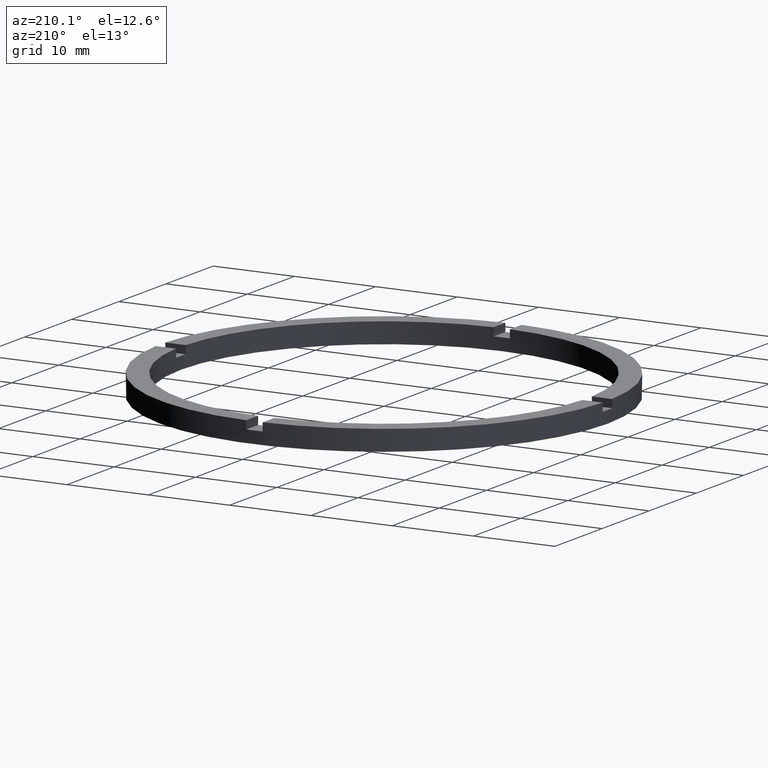
[diagram: clean part render]
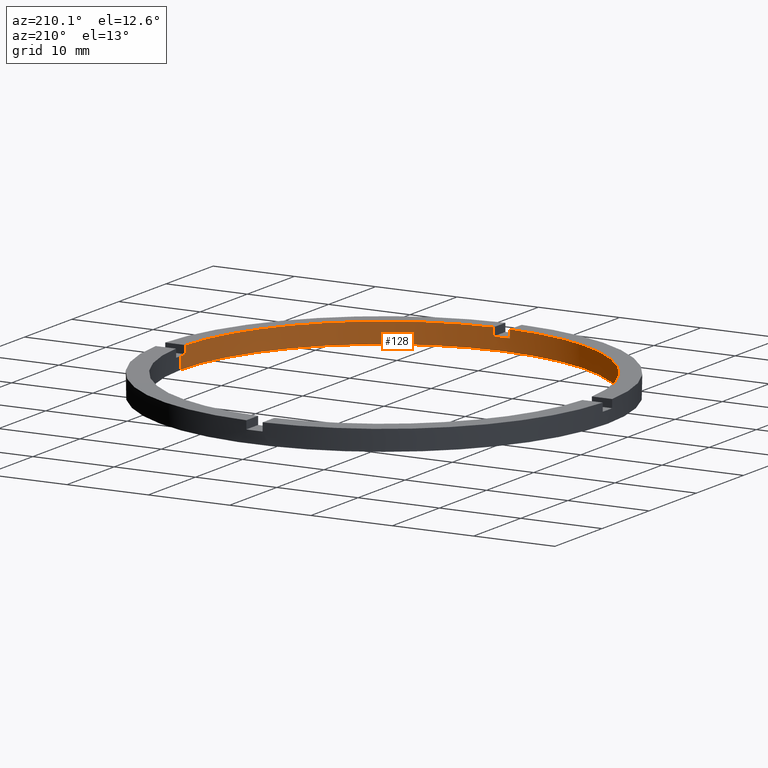
[diagram: same view with one face highlighted and labeled with its STEP entity id]
A machine part, auxiliary view. The second image highlights one B-rep face of the part: STEP entity #128.
In plain terms, the highlighted cylindrical surface (partial cylindrical patch) has radius 25 mm, axis along (-0, -0, -1).
Its self-contained STEP definition (entity closure, byte-faithful):
#6 = EDGE_CURVE ( 'NONE', #117, #188, #278, .T. ) ;
#9 = DIRECTION ( 'NONE',  ( 1.000000000000000000, 0.000000000000000000, 0.000000000000000000 ) ) ;
#13 = CARTESIAN_POINT ( 'NONE',  ( 0.000000000000000000, 0.000000000000000000, 1.500000000000000000 ) ) ;
#21 = CARTESIAN_POINT ( 'NONE',  ( 0.000000000000000000, 0.000000000000000000, 0.000000000000000000 ) ) ;
#26 = LINE ( 'NONE', #185, #553 ) ;
#30 = CIRCLE ( 'NONE', #533, 25.00000000000000000 ) ;
#33 = CARTESIAN_POINT ( 'NONE',  ( -1.000000000000160316, -24.97999199359358968, 1.500000000000000000 ) ) ;
#36 = AXIS2_PLACEMENT_3D ( 'NONE', #65, #618, #9 ) ;
#43 = CARTESIAN_POINT ( 'NONE',  ( 0.000000000000000000, 0.000000000000000000, 1.500000000000000000 ) ) ;
#44 = AXIS2_PLACEMENT_3D ( 'NONE', #21, #736, #739 ) ;
#65 = CARTESIAN_POINT ( 'NONE',  ( 0.000000000000000000, 0.000000000000000000, 2.500000000000000000 ) ) ;
#77 = ORIENTED_EDGE ( 'NONE', *, *, #657, .T. ) ;
#91 = VERTEX_POINT ( 'NONE', #432 ) ;
#92 = ORIENTED_EDGE ( 'NONE', *, *, #307, .T. ) ;
#96 = CARTESIAN_POINT ( 'NONE',  ( -25.00000000000000000, 0.000000000000000000, 1.500000000000000000 ) ) ;
#112 = DIRECTION ( 'NONE',  ( -0.000000000000000000, -0.000000000000000000, -1.000000000000000000 ) ) ;
#113 = ORIENTED_EDGE ( 'NONE', *, *, #509, .F. ) ;
#117 = VERTEX_POINT ( 'NONE', #542 ) ;
#119 = CARTESIAN_POINT ( 'NONE',  ( -1.000000000000160316, -24.97999199359358968, 2.500000000000000000 ) ) ;
#128 = ADVANCED_FACE ( 'NONE', ( #522 ), #257, .F. ) ;
#134 = ORIENTED_EDGE ( 'NONE', *, *, #177, .F. ) ;
#136 = ORIENTED_EDGE ( 'NONE', *, *, #625, .F. ) ;
#139 = AXIS2_PLACEMENT_3D ( 'NONE', #43, #222, #347 ) ;
#144 = VERTEX_POINT ( 'NONE', #680 ) ;
#155 = DIRECTION ( 'NONE',  ( 0.000000000000000000, 0.000000000000000000, 1.000000000000000000 ) ) ;
#160 = CARTESIAN_POINT ( 'NONE',  ( 25.00000000000000000, 3.061616997868383043E-15, 0.000000000000000000 ) ) ;
#177 = EDGE_CURVE ( 'NONE', #91, #655, #277, .T. ) ;
#185 = CARTESIAN_POINT ( 'NONE',  ( 25.00000000000000000, 3.061616997868383043E-15, 2.500000000000000000 ) ) ;
#188 = VERTEX_POINT ( 'NONE', #254 ) ;
#202 = EDGE_CURVE ( 'NONE', #653, #91, #505, .T. ) ;
#213 = DIRECTION ( 'NONE',  ( -0.000000000000000000, -0.000000000000000000, -1.000000000000000000 ) ) ;
#222 = DIRECTION ( 'NONE',  ( 0.000000000000000000, 0.000000000000000000, 1.000000000000000000 ) ) ;
#228 = VECTOR ( 'NONE', #112, 1000.000000000000000 ) ;
#235 = LINE ( 'NONE', #280, #502 ) ;
#237 = LINE ( 'NONE', #746, #228 ) ;
#245 = DIRECTION ( 'NONE',  ( -0.000000000000000000, -0.000000000000000000, -1.000000000000000000 ) ) ;
#251 = VECTOR ( 'NONE', #569, 1000.000000000000000 ) ;
#254 = CARTESIAN_POINT ( 'NONE',  ( 25.00000000000000000, 3.061616997868383043E-15, 1.500000000000000000 ) ) ;
#257 = CYLINDRICAL_SURFACE ( 'NONE', #574, 25.00000000000000000 ) ;
#261 = CARTESIAN_POINT ( 'NONE',  ( 0.000000000000000000, 0.000000000000000000, 2.500000000000000000 ) ) ;
#277 = CIRCLE ( 'NONE', #44, 25.00000000000000000 ) ;
#278 = CIRCLE ( 'NONE', #436, 25.00000000000000000 ) ;
#280 = CARTESIAN_POINT ( 'NONE',  ( -1.000000000000160316, -24.97999199359358968, 2.500000000000000000 ) ) ;
#294 = CIRCLE ( 'NONE', #485, 25.00000000000000000 ) ;
#300 = DIRECTION ( 'NONE',  ( 0.000000000000000000, 0.000000000000000000, 1.000000000000000000 ) ) ;
#301 = CIRCLE ( 'NONE', #36, 25.00000000000000000 ) ;
#305 = VECTOR ( 'NONE', #213, 1000.000000000000000 ) ;
#307 = EDGE_CURVE ( 'NONE', #611, #710, #294, .T. ) ;
#315 = DIRECTION ( 'NONE',  ( -0.000000000000000000, -0.000000000000000000, -1.000000000000000000 ) ) ;
#331 = CARTESIAN_POINT ( 'NONE',  ( 0.000000000000000000, 0.000000000000000000, 2.500000000000000000 ) ) ;
#347 = DIRECTION ( 'NONE',  ( 1.000000000000000000, 0.000000000000000000, 0.000000000000000000 ) ) ;
#349 = ORIENTED_EDGE ( 'NONE', *, *, #417, .T. ) ;
#354 = VERTEX_POINT ( 'NONE', #415 ) ;
#358 = ORIENTED_EDGE ( 'NONE', *, *, #567, .F. ) ;
#381 = ORIENTED_EDGE ( 'NONE', *, *, #410, .T. ) ;
#402 = ORIENTED_EDGE ( 'NONE', *, *, #469, .T. ) ;
#409 = CARTESIAN_POINT ( 'NONE',  ( -24.97999199359359679, -1.000000000000026423, 1.500000000000000000 ) ) ;
#410 = EDGE_CURVE ( 'NONE', #188, #655, #26, .T. ) ;
#411 = DIRECTION ( 'NONE',  ( 1.000000000000000000, 0.000000000000000000, 0.000000000000000000 ) ) ;
#415 = CARTESIAN_POINT ( 'NONE',  ( 0.9999999999998397948, -24.97999199359360034, 2.500000000000000000 ) ) ;
#417 = EDGE_CURVE ( 'NONE', #606, #711, #30, .T. ) ;
#420 = CARTESIAN_POINT ( 'NONE',  ( -25.00000000000000000, 0.000000000000000000, 2.500000000000000000 ) ) ;
#432 = CARTESIAN_POINT ( 'NONE',  ( -25.00000000000000000, 0.000000000000000000, 0.000000000000000000 ) ) ;
#436 = AXIS2_PLACEMENT_3D ( 'NONE', #512, #300, #757 ) ;
#469 = EDGE_CURVE ( 'NONE', #354, #144, #301, .T. ) ;
#485 = AXIS2_PLACEMENT_3D ( 'NONE', #13, #529, #589 ) ;
#493 = CARTESIAN_POINT ( 'NONE',  ( 24.97999199359358968, -1.000000000000157208, 2.500000000000000000 ) ) ;
#494 = LINE ( 'NONE', #493, #251 ) ;
#500 = CARTESIAN_POINT ( 'NONE',  ( -24.97999199359359679, -1.000000000000026423, 2.500000000000000000 ) ) ;
#502 = VECTOR ( 'NONE', #155, 1000.000000000000000 ) ;
#504 = DIRECTION ( 'NONE',  ( 0.000000000000000000, 0.000000000000000000, 1.000000000000000000 ) ) ;
#505 = LINE ( 'NONE', #420, #769 ) ;
#509 = EDGE_CURVE ( 'NONE', #606, #615, #557, .T. ) ;
#512 = CARTESIAN_POINT ( 'NONE',  ( 0.000000000000000000, 0.000000000000000000, 1.500000000000000000 ) ) ;
#522 = FACE_OUTER_BOUND ( 'NONE', #638, .T. ) ;
#529 = DIRECTION ( 'NONE',  ( -0.000000000000000000, 0.000000000000000000, 1.000000000000000000 ) ) ;
#533 = AXIS2_PLACEMENT_3D ( 'NONE', #331, #504, #411 ) ;
#542 = CARTESIAN_POINT ( 'NONE',  ( 24.97999199359358968, -1.000000000000157208, 1.500000000000000000 ) ) ;
#553 = VECTOR ( 'NONE', #315, 1000.000000000000000 ) ;
#557 = LINE ( 'NONE', #500, #305 ) ;
#567 = EDGE_CURVE ( 'NONE', #117, #144, #494, .T. ) ;
#569 = DIRECTION ( 'NONE',  ( 0.000000000000000000, 0.000000000000000000, 1.000000000000000000 ) ) ;
#574 = AXIS2_PLACEMENT_3D ( 'NONE', #261, #245, #597 ) ;
#589 = DIRECTION ( 'NONE',  ( 1.000000000000000000, 0.000000000000000000, 0.000000000000000000 ) ) ;
#597 = DIRECTION ( 'NONE',  ( -1.000000000000000000, 0.000000000000000000, 0.000000000000000000 ) ) ;
#606 = VERTEX_POINT ( 'NONE', #745 ) ;
#611 = VERTEX_POINT ( 'NONE', #33 ) ;
#615 = VERTEX_POINT ( 'NONE', #409 ) ;
#618 = DIRECTION ( 'NONE',  ( 0.000000000000000000, 0.000000000000000000, 1.000000000000000000 ) ) ;
#625 = EDGE_CURVE ( 'NONE', #611, #711, #235, .T. ) ;
#631 = ORIENTED_EDGE ( 'NONE', *, *, #727, .F. ) ;
#638 = EDGE_LOOP ( 'NONE', ( #666, #381, #134, #682, #77, #113, #349, #136, #92, #631, #402, #358 ) ) ;
#653 = VERTEX_POINT ( 'NONE', #96 ) ;
#655 = VERTEX_POINT ( 'NONE', #160 ) ;
#657 = EDGE_CURVE ( 'NONE', #653, #615, #763, .T. ) ;
#666 = ORIENTED_EDGE ( 'NONE', *, *, #6, .T. ) ;
#672 = CARTESIAN_POINT ( 'NONE',  ( 0.9999999999998397948, -24.97999199359360034, 1.500000000000000000 ) ) ;
#680 = CARTESIAN_POINT ( 'NONE',  ( 24.97999199359358968, -1.000000000000157208, 2.500000000000000000 ) ) ;
#682 = ORIENTED_EDGE ( 'NONE', *, *, #202, .F. ) ;
#710 = VERTEX_POINT ( 'NONE', #672 ) ;
#711 = VERTEX_POINT ( 'NONE', #119 ) ;
#717 = DIRECTION ( 'NONE',  ( -0.000000000000000000, -0.000000000000000000, -1.000000000000000000 ) ) ;
#727 = EDGE_CURVE ( 'NONE', #354, #710, #237, .T. ) ;
#736 = DIRECTION ( 'NONE',  ( 0.000000000000000000, 0.000000000000000000, 1.000000000000000000 ) ) ;
#739 = DIRECTION ( 'NONE',  ( 1.000000000000000000, 0.000000000000000000, 0.000000000000000000 ) ) ;
#745 = CARTESIAN_POINT ( 'NONE',  ( -24.97999199359359679, -1.000000000000026423, 2.500000000000000000 ) ) ;
#746 = CARTESIAN_POINT ( 'NONE',  ( 0.9999999999998397948, -24.97999199359360034, 2.500000000000000000 ) ) ;
#757 = DIRECTION ( 'NONE',  ( 1.000000000000000000, 0.000000000000000000, 0.000000000000000000 ) ) ;
#763 = CIRCLE ( 'NONE', #139, 25.00000000000000000 ) ;
#769 = VECTOR ( 'NONE', #717, 1000.000000000000000 ) ;